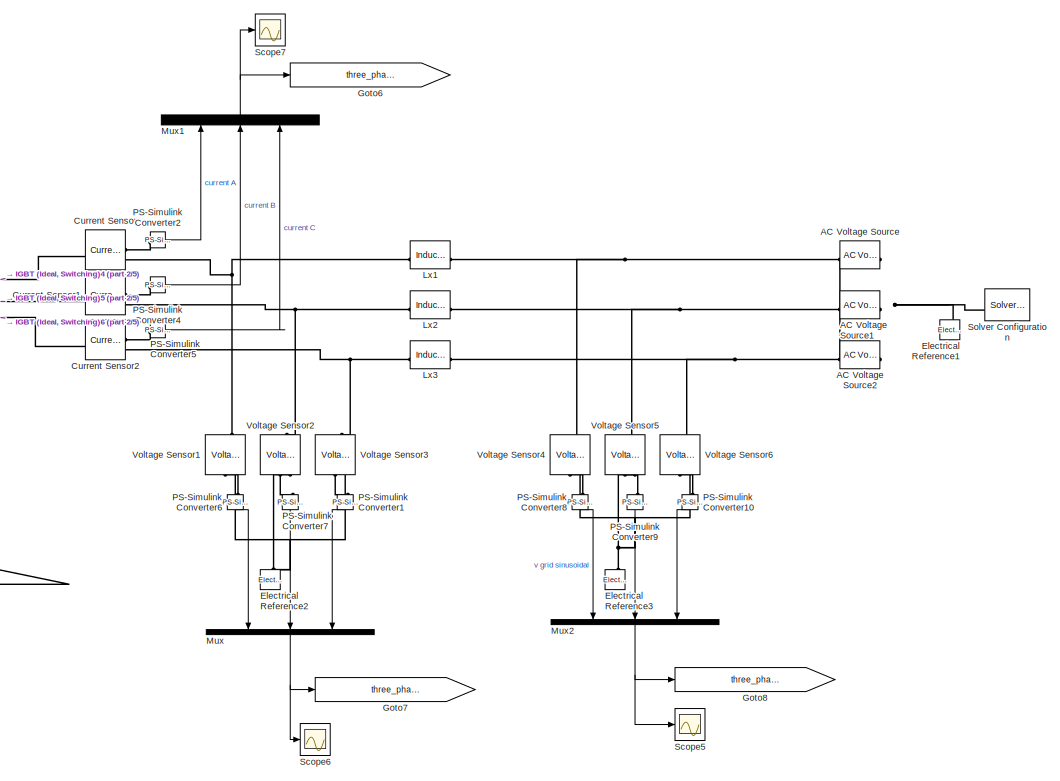
[diagram: root canvas - part 1/5, top center region]
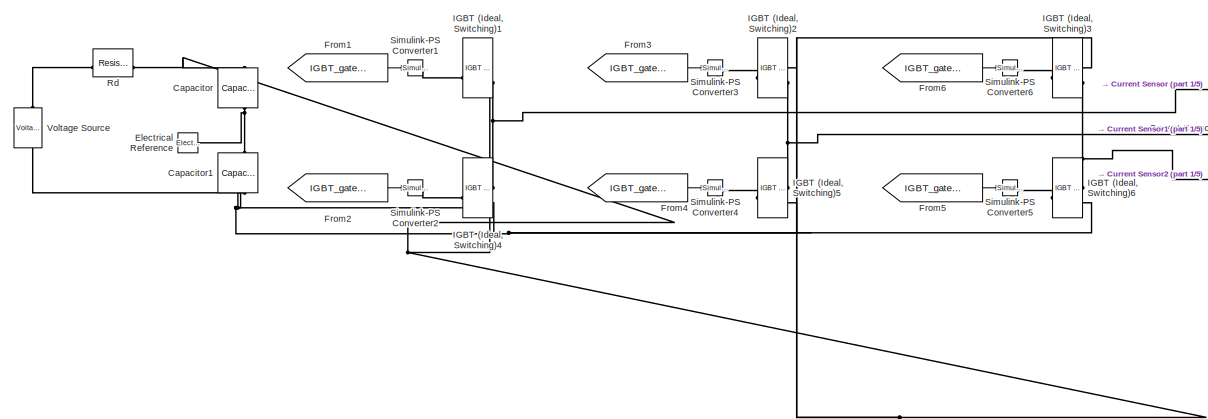
[diagram: root canvas - part 2/5, top center region]
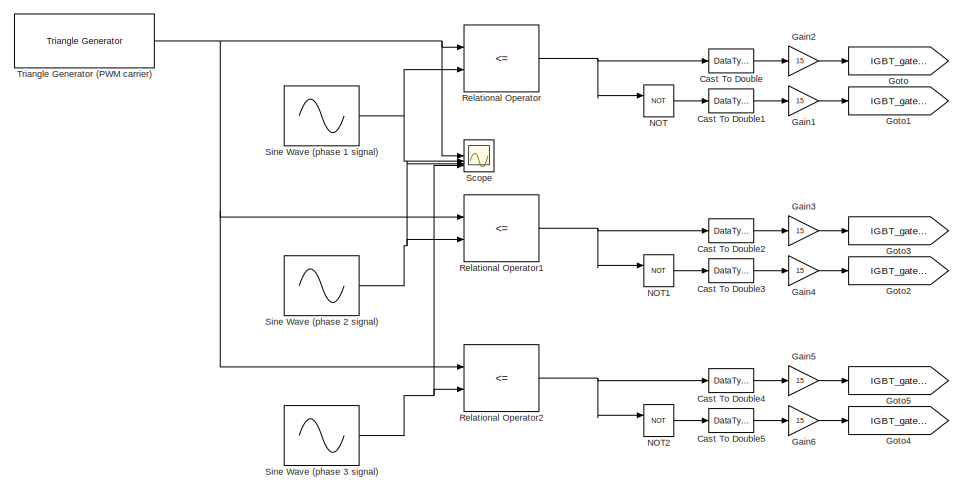
[diagram: root canvas - part 3/5, top left region]
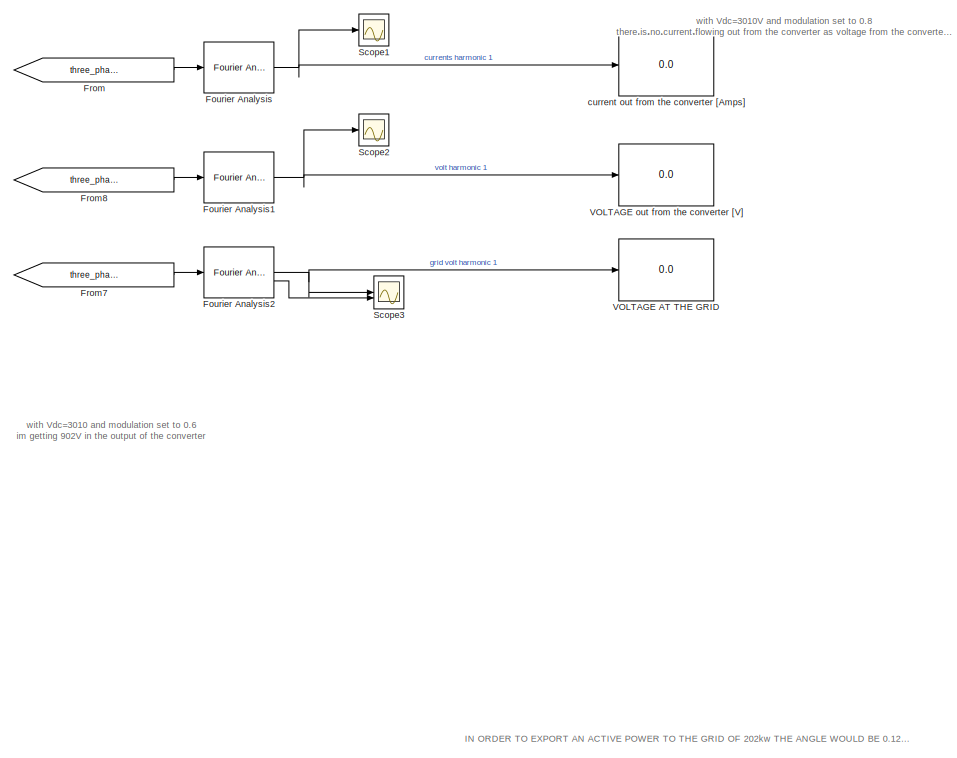
[diagram: root canvas - part 4/5, middle right region]
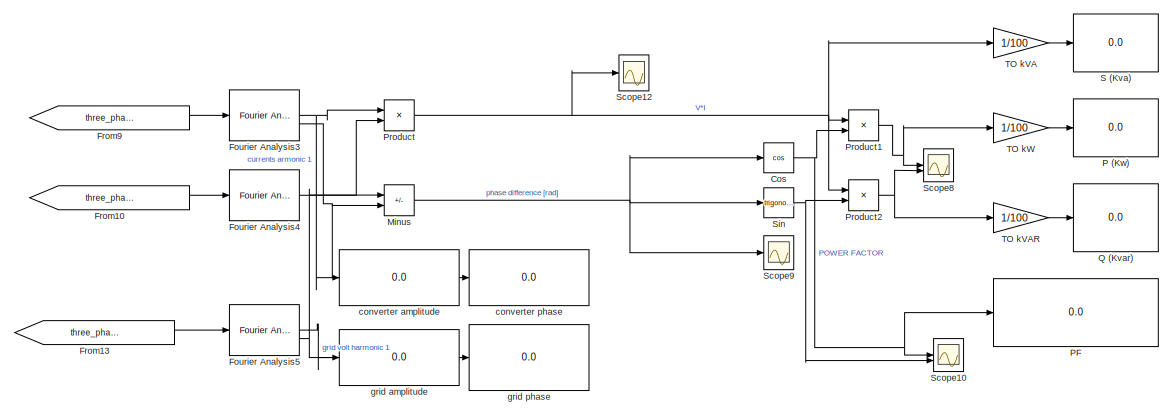
[diagram: root canvas - part 5/5, bottom right region]
MODEL slx_abad2aa7c683
KIND model
CONFIG AbsTol = auto
CONFIG EnableMultiTasking = off
CONFIG FixedStep = auto
CONFIG MaxStep = auto
CONFIG MinStep = auto
CONFIG RelTol = 1e-3
CONFIG SampleTimeConstraint = Unconstrained
CONFIG SolverName = VariableStepAuto
CONFIG StartTime = 0.0
CONFIG StopTime = sim_time
BLOCK [Reference] AC Voltage Source  REF=fl_lib/Electrical/Electrical Sources/AC Voltage Source
  NameLocation = top
  SourceBlock = fl_lib/Electrical/Electrical Sources/AC Voltage Source
  SourceType = AC Voltage Source
BLOCK [Reference] AC Voltage Source1  REF=fl_lib/Electrical/Electrical Sources/AC Voltage Source
  NameLocation = top
  SourceBlock = fl_lib/Electrical/Electrical Sources/AC Voltage Source
  SourceType = AC Voltage Source
BLOCK [Reference] AC Voltage Source2  REF=fl_lib/Electrical/Electrical Sources/AC Voltage Source
  NameLocation = top
  SourceBlock = fl_lib/Electrical/Electrical Sources/AC Voltage Source
  SourceType = AC Voltage Source
BLOCK [Reference] Capacitor  REF=fl_lib/Electrical/Electrical Elements/Capacitor
  NameLocation = left
  SourceBlock = fl_lib/Electrical/Electrical Elements/Capacitor
  SourceType = Capacitor
BLOCK [Reference] Capacitor1  REF=fl_lib/Electrical/Electrical Elements/Capacitor
  NameLocation = left
  SourceBlock = fl_lib/Electrical/Electrical Elements/Capacitor
  SourceType = Capacitor
BLOCK [DataTypeConversion] Cast To Double
  OutDataTypeStr = double
  RndMeth = Floor
  SaturateOnIntegerOverflow = off
BLOCK [DataTypeConversion] Cast To Double1
  OutDataTypeStr = double
  RndMeth = Floor
  SaturateOnIntegerOverflow = off
BLOCK [DataTypeConversion] Cast To Double2
  OutDataTypeStr = double
  RndMeth = Floor
  SaturateOnIntegerOverflow = off
BLOCK [DataTypeConversion] Cast To Double3
  OutDataTypeStr = double
  RndMeth = Floor
  SaturateOnIntegerOverflow = off
BLOCK [DataTypeConversion] Cast To Double4
  OutDataTypeStr = double
  RndMeth = Floor
  SaturateOnIntegerOverflow = off
BLOCK [DataTypeConversion] Cast To Double5
  OutDataTypeStr = double
  RndMeth = Floor
  SaturateOnIntegerOverflow = off
BLOCK [Trigonometry] Cos
  Operator = cos
BLOCK [Reference] Current Sensor  REF=fl_lib/Electrical/Electrical Sensors/Current Sensor
  SourceBlock = fl_lib/Electrical/Electrical Sensors/Current Sensor
  SourceType = Current Sensor
BLOCK [Reference] Current Sensor1  REF=fl_lib/Electrical/Electrical Sensors/Current Sensor
  SourceBlock = fl_lib/Electrical/Electrical Sensors/Current Sensor
  SourceType = Current Sensor
BLOCK [Reference] Current Sensor2  REF=fl_lib/Electrical/Electrical Sensors/Current Sensor
  SourceBlock = fl_lib/Electrical/Electrical Sensors/Current Sensor
  SourceType = Current Sensor
BLOCK [Reference] Electrical Reference  REF=fl_lib/Electrical/Electrical Elements/Electrical Reference
  NameLocation = right
  SourceBlock = fl_lib/Electrical/Electrical Elements/Electrical Reference
  SourceType = Electrical Reference
BLOCK [Reference] Electrical Reference1  REF=fl_lib/Electrical/Electrical Elements/Electrical Reference
  NameLocation = right
  SourceBlock = fl_lib/Electrical/Electrical Elements/Electrical Reference
  SourceType = Electrical Reference
BLOCK [Reference] Electrical Reference2  REF=fl_lib/Electrical/Electrical Elements/Electrical Reference
  NameLocation = right
  SourceBlock = fl_lib/Electrical/Electrical Elements/Electrical Reference
  SourceType = Electrical Reference
BLOCK [Reference] Electrical Reference3  REF=fl_lib/Electrical/Electrical Elements/Electrical Reference
  NameLocation = right
  SourceBlock = fl_lib/Electrical/Electrical Elements/Electrical Reference
  SourceType = Electrical Reference
BLOCK [Reference] Fourier Analysis  REF=eeGeneralControl/Fourier Analysis
  LibrarySourceBlock = ee_sl_lib/General Control/Fourier Analysis
  SourceBlock = eeGeneralControl/Fourier Analysis
  SourceType = Fourier Analysis
BLOCK [Reference] Fourier Analysis1  REF=eeGeneralControl/Fourier Analysis
  LibrarySourceBlock = ee_sl_lib/General Control/Fourier Analysis
  SourceBlock = eeGeneralControl/Fourier Analysis
  SourceType = Fourier Analysis
BLOCK [Reference] Fourier Analysis2  REF=eeGeneralControl/Fourier Analysis
  LibrarySourceBlock = ee_sl_lib/General Control/Fourier Analysis
  SourceBlock = eeGeneralControl/Fourier Analysis
  SourceType = Fourier Analysis
BLOCK [Reference] Fourier Analysis3  REF=eeGeneralControl/Fourier Analysis
  LibrarySourceBlock = ee_sl_lib/General Control/Fourier Analysis
  SourceBlock = eeGeneralControl/Fourier Analysis
  SourceType = Fourier Analysis
BLOCK [Reference] Fourier Analysis4  REF=eeGeneralControl/Fourier Analysis
  LibrarySourceBlock = ee_sl_lib/General Control/Fourier Analysis
  SourceBlock = eeGeneralControl/Fourier Analysis
  SourceType = Fourier Analysis
BLOCK [Reference] Fourier Analysis5  REF=eeGeneralControl/Fourier Analysis
  LibrarySourceBlock = ee_sl_lib/General Control/Fourier Analysis
  SourceBlock = eeGeneralControl/Fourier Analysis
  SourceType = Fourier Analysis
BLOCK [From] From
  GotoTag = three_phase_currents
BLOCK [From] From1
  GotoTag = IGBT_gate_1
BLOCK [From] From10
  GotoTag = three_phase_currents
BLOCK [From] From13
  GotoTag = three_phase_volts_grid
BLOCK [From] From2
  GotoTag = IGBT_gate_4
BLOCK [From] From3
  GotoTag = IGBT_gate_3
BLOCK [From] From4
  GotoTag = IGBT_gate_6
BLOCK [From] From5
  GotoTag = IGBT_gate_2
BLOCK [From] From6
  GotoTag = IGBT_gate_5
BLOCK [From] From7
  GotoTag = three_phase_volts_grid
BLOCK [From] From8
  GotoTag = three_phase_volts_converter
BLOCK [From] From9
  GotoTag = three_phase_volts_converter
BLOCK [Gain] Gain1
  Gain = 15
BLOCK [Gain] Gain2
  Gain = 15
BLOCK [Gain] Gain3
  Gain = 15
BLOCK [Gain] Gain4
  Gain = 15
BLOCK [Gain] Gain5
  Gain = 15
BLOCK [Gain] Gain6
  Gain = 15
BLOCK [Goto] Goto
  GotoTag = IGBT_gate_1
BLOCK [Goto] Goto1
  GotoTag = IGBT_gate_4
BLOCK [Goto] Goto2
  GotoTag = IGBT_gate_6
BLOCK [Goto] Goto3
  GotoTag = IGBT_gate_3
BLOCK [Goto] Goto4
  GotoTag = IGBT_gate_2
BLOCK [Goto] Goto5
  GotoTag = IGBT_gate_5
BLOCK [Goto] Goto6
  GotoTag = three_phase_currents
  NameLocation = top
BLOCK [Goto] Goto7
  GotoTag = three_phase_volts_converter
  NameLocation = top
BLOCK [Goto] Goto8
  GotoTag = three_phase_volts_grid
  NameLocation = top
BLOCK [Reference] IGBT (Ideal, Switching)1  REF=ee_lib/Semiconductors &
Converters/IGBT
(Ideal,
Switching)
  SourceBlock = ee_lib/Semiconductors &\nConverters/IGBT\n(Ideal,\nSwitching)
  SourceType = IGBT\n(Ideal,\nSwitching)
BLOCK [Reference] IGBT (Ideal, Switching)2  REF=ee_lib/Semiconductors &
Converters/IGBT
(Ideal,
Switching)
  SourceBlock = ee_lib/Semiconductors &\nConverters/IGBT\n(Ideal,\nSwitching)
  SourceType = IGBT\n(Ideal,\nSwitching)
BLOCK [Reference] IGBT (Ideal, Switching)3  REF=ee_lib/Semiconductors &
Converters/IGBT
(Ideal,
Switching)
  SourceBlock = ee_lib/Semiconductors &\nConverters/IGBT\n(Ideal,\nSwitching)
  SourceType = IGBT\n(Ideal,\nSwitching)
BLOCK [Reference] IGBT (Ideal, Switching)4  REF=ee_lib/Semiconductors &
Converters/IGBT
(Ideal,
Switching)
  SourceBlock = ee_lib/Semiconductors &\nConverters/IGBT\n(Ideal,\nSwitching)
  SourceType = IGBT\n(Ideal,\nSwitching)
BLOCK [Reference] IGBT (Ideal, Switching)5  REF=ee_lib/Semiconductors &
Converters/IGBT
(Ideal,
Switching)
  SourceBlock = ee_lib/Semiconductors &\nConverters/IGBT\n(Ideal,\nSwitching)
  SourceType = IGBT\n(Ideal,\nSwitching)
BLOCK [Reference] IGBT (Ideal, Switching)6  REF=ee_lib/Semiconductors &
Converters/IGBT
(Ideal,
Switching)
  SourceBlock = ee_lib/Semiconductors &\nConverters/IGBT\n(Ideal,\nSwitching)
  SourceType = IGBT\n(Ideal,\nSwitching)
BLOCK [Reference] Lx1  REF=fl_lib/Electrical/Electrical Elements/Inductor
  NameLocation = top
  SourceBlock = fl_lib/Electrical/Electrical Elements/Inductor
  SourceType = Inductor
BLOCK [Reference] Lx2  REF=fl_lib/Electrical/Electrical Elements/Inductor
  NameLocation = top
  SourceBlock = fl_lib/Electrical/Electrical Elements/Inductor
  SourceType = Inductor
BLOCK [Reference] Lx3  REF=fl_lib/Electrical/Electrical Elements/Inductor
  NameLocation = top
  SourceBlock = fl_lib/Electrical/Electrical Elements/Inductor
  SourceType = Inductor
BLOCK [Sum] Minus
  IconShape = rectangular
  Inputs = -+
BLOCK [Mux] Mux
  DisplayOption = bar
  Inputs = 3
  NameLocation = left
BLOCK [Mux] Mux1
  DisplayOption = bar
  Inputs = 3
  NameLocation = right
BLOCK [Mux] Mux2
  DisplayOption = bar
  Inputs = 3
  NameLocation = left
BLOCK [Logic] NOT
  AllPortsSameDT = off
  IconShape = distinctive
  Operator = NOT
  OutDataTypeStr = boolean
BLOCK [Logic] NOT1
  AllPortsSameDT = off
  IconShape = distinctive
  Operator = NOT
  OutDataTypeStr = boolean
BLOCK [Logic] NOT2
  AllPortsSameDT = off
  IconShape = distinctive
  Operator = NOT
  OutDataTypeStr = boolean
BLOCK [Display] P (Kw)
  Decimation = 1
BLOCK [Display] PF
  Decimation = 1
  Format = long
BLOCK [Reference] PS-Simulink Converter1  REF=nesl_utility/PS-Simulink
Converter
  NameLocation = left
  SourceBlock = nesl_utility/PS-Simulink\nConverter
  SourceType = PS-Simulink\nConverter
BLOCK [Reference] PS-Simulink Converter10  REF=nesl_utility/PS-Simulink
Converter
  NameLocation = left
  SourceBlock = nesl_utility/PS-Simulink\nConverter
  SourceType = PS-Simulink\nConverter
BLOCK [Reference] PS-Simulink Converter2  REF=nesl_utility/PS-Simulink
Converter
  SourceBlock = nesl_utility/PS-Simulink\nConverter
  SourceType = PS-Simulink\nConverter
BLOCK [Reference] PS-Simulink Converter4  REF=nesl_utility/PS-Simulink
Converter
  SourceBlock = nesl_utility/PS-Simulink\nConverter
  SourceType = PS-Simulink\nConverter
BLOCK [Reference] PS-Simulink Converter5  REF=nesl_utility/PS-Simulink
Converter
  SourceBlock = nesl_utility/PS-Simulink\nConverter
  SourceType = PS-Simulink\nConverter
BLOCK [Reference] PS-Simulink Converter6  REF=nesl_utility/PS-Simulink
Converter
  NameLocation = left
  SourceBlock = nesl_utility/PS-Simulink\nConverter
  SourceType = PS-Simulink\nConverter
BLOCK [Reference] PS-Simulink Converter7  REF=nesl_utility/PS-Simulink
Converter
  NameLocation = left
  SourceBlock = nesl_utility/PS-Simulink\nConverter
  SourceType = PS-Simulink\nConverter
BLOCK [Reference] PS-Simulink Converter8  REF=nesl_utility/PS-Simulink
Converter
  NameLocation = left
  SourceBlock = nesl_utility/PS-Simulink\nConverter
  SourceType = PS-Simulink\nConverter
BLOCK [Reference] PS-Simulink Converter9  REF=nesl_utility/PS-Simulink
Converter
  NameLocation = left
  SourceBlock = nesl_utility/PS-Simulink\nConverter
  SourceType = PS-Simulink\nConverter
BLOCK [Product] Product
BLOCK [Product] Product1
BLOCK [Product] Product2
BLOCK [Display] Q (Kvar)
  Decimation = 1
BLOCK [Reference] Rd  REF=fl_lib/Electrical/Electrical Elements/Resistor
  NameLocation = top
  SourceBlock = fl_lib/Electrical/Electrical Elements/Resistor
  SourceType = Resistor
BLOCK [RelationalOperator] Relational Operator
  InputSameDT = off
  Operator = <=
  OutDataTypeStr = boolean
  RndMeth = Simplest
BLOCK [RelationalOperator] Relational Operator1
  InputSameDT = off
  Operator = <=
  OutDataTypeStr = boolean
  RndMeth = Simplest
BLOCK [RelationalOperator] Relational Operator2
  InputSameDT = off
  Operator = <=
  OutDataTypeStr = boolean
  RndMeth = Simplest
BLOCK [Display] S (Kva)
  Decimation = 1
BLOCK [Scope] Scope
  Floating = off
  NumInputPorts = 4
  ScopeSpecificationString = Simulink.scopes.TimeScopeBlockCfg('CurrentConfiguration', extmgr.ConfigurationSet(extmgr.Configuration('Core','General UI',true),extmgr.Configuration('Core','Source UI',true),extmgr.Configuration('Sources','WiredSimulink',true),extmgr.Configuration('Visuals','Time Domain',true,'SerializedDisplays',{struct('MinYLimReal','-1.25','MaxYLimReal','1.25','YLabelReal','','MinYLimMag','0.00000','MaxYLimMag...<+1450ch>
BLOCK [Scope] Scope1
  Floating = off
  NumInputPorts = 1
  ScopeSpecificationString = Simulink.scopes.TimeScopeBlockCfg('CurrentConfiguration', extmgr.ConfigurationSet(extmgr.Configuration('Core','General UI',true),extmgr.Configuration('Core','Source UI',true),extmgr.Configuration('Sources','WiredSimulink',true,'DataLoggingVariableName','ScopeData1'),extmgr.Configuration('Visuals','Time Domain',true,'SerializedDisplays',{struct('MinYLimReal','-2.13617','MaxYLimReal','19.22554','YLa...<+1432ch>
BLOCK [Scope] Scope10
  Floating = off
  NumInputPorts = 2
  ScopeSpecificationString = Simulink.scopes.TimeScopeBlockCfg('CurrentConfiguration', extmgr.ConfigurationSet(extmgr.Configuration('Core','General UI',true),extmgr.Configuration('Core','Source UI',true),extmgr.Configuration('Sources','WiredSimulink',true,'DataLoggingVariableName','ScopeData3'),extmgr.Configuration('Visuals','Time Domain',true,'SerializedDisplays',{struct('MinYLimReal','0.99179','MaxYLimReal','1.00091','YLabe...<+2097ch>
BLOCK [Scope] Scope12
  Floating = off
  NumInputPorts = 1
  ScopeSpecificationString = Simulink.scopes.TimeScopeBlockCfg('CurrentConfiguration', extmgr.ConfigurationSet(extmgr.Configuration('Core','General UI',true),extmgr.Configuration('Core','Source UI',true),extmgr.Configuration('Sources','WiredSimulink',true,'DataLoggingVariableName','ScopeData1'),extmgr.Configuration('Visuals','Time Domain',true,'SerializedDisplays',{struct('MinYLimReal','-2552.64642','MaxYLimReal','22973.81782...<+1483ch>
BLOCK [Scope] Scope2
  Floating = off
  NumInputPorts = 1
  ScopeSpecificationString = Simulink.scopes.TimeScopeBlockCfg('CurrentConfiguration', extmgr.ConfigurationSet(extmgr.Configuration('Core','General UI',true),extmgr.Configuration('Core','Source UI',true),extmgr.Configuration('Sources','WiredSimulink',true,'DataLoggingVariableName','ScopeData2'),extmgr.Configuration('Visuals','Time Domain',true,'SerializedDisplays',{struct('MinYLimReal','-149.52883','MaxYLimReal','1345.75946',...<+1434ch>
BLOCK [Scope] Scope3
  Floating = off
  NumInputPorts = 2
  ScopeSpecificationString = Simulink.scopes.TimeScopeBlockCfg('CurrentConfiguration', extmgr.ConfigurationSet(extmgr.Configuration('Core','General UI',true),extmgr.Configuration('Core','Source UI',true),extmgr.Configuration('Sources','WiredSimulink',true,'DataLoggingVariableName','ScopeData3'),extmgr.Configuration('Visuals','Time Domain',true,'SerializedDisplays',{struct('MinYLimReal','-150.00000','MaxYLimReal','1350.00000',...<+2204ch>
BLOCK [Scope] Scope5
  Floating = off
  NumInputPorts = 1
  ScopeSpecificationString = Simulink.scopes.TimeScopeBlockCfg('CurrentConfiguration', extmgr.ConfigurationSet(extmgr.Configuration('Core','General UI',true),extmgr.Configuration('Core','Source UI',true),extmgr.Configuration('Sources','WiredSimulink',true,'DataLoggingVariableName','ScopeData5'),extmgr.Configuration('Visuals','Time Domain',true,'SerializedDisplays',{struct('MinYLimReal','-1500.00000','MaxYLimReal','1500.00000'...<+1478ch>
BLOCK [Scope] Scope6
  Floating = off
  NumInputPorts = 1
  ScopeSpecificationString = Simulink.scopes.TimeScopeBlockCfg('CurrentConfiguration', extmgr.ConfigurationSet(extmgr.Configuration('Core','General UI',true),extmgr.Configuration('Core','Source UI',true),extmgr.Configuration('Sources','WiredSimulink',true,'DataLoggingVariableName','ScopeData6'),extmgr.Configuration('Visuals','Time Domain',true,'SerializedDisplays',{struct('MinYLimReal','-1780.41779','MaxYLimReal','1564.79164'...<+1526ch>
BLOCK [Scope] Scope7
  Floating = off
  NumInputPorts = 1
  ScopeSpecificationString = Simulink.scopes.TimeScopeBlockCfg('CurrentConfiguration', extmgr.ConfigurationSet(extmgr.Configuration('Core','General UI',true),extmgr.Configuration('Core','Source UI',true),extmgr.Configuration('Sources','WiredSimulink',true,'DataLoggingVariableName','ScopeData7'),extmgr.Configuration('Visuals','Time Domain',true,'SerializedDisplays',{struct('MinYLimReal','-48.19122','MaxYLimReal','48.23056','YL...<+1452ch>
BLOCK [Scope] Scope8
  Floating = off
  NumInputPorts = 2
  ScopeSpecificationString = Simulink.scopes.TimeScopeBlockCfg('CurrentConfiguration', extmgr.ConfigurationSet(extmgr.Configuration('Core','General UI',true),extmgr.Configuration('Core','Source UI',true),extmgr.Configuration('Sources','WiredSimulink',true,'DataLoggingVariableName','ScopeData1'),extmgr.Configuration('Visuals','Time Domain',true,'SerializedDisplays',{struct('MinYLimReal','-2534.19319','MaxYLimReal','22807.73874...<+2145ch>
BLOCK [Scope] Scope9
  Floating = off
  NumInputPorts = 1
  ScopeSpecificationString = Simulink.scopes.TimeScopeBlockCfg('CurrentConfiguration', extmgr.ConfigurationSet(extmgr.Configuration('Core','General UI',true),extmgr.Configuration('Core','Source UI',true),extmgr.Configuration('Sources','WiredSimulink',true,'DataLoggingVariableName','ScopeData2'),extmgr.Configuration('Visuals','Time Domain',true,'SerializedDisplays',{struct('MinYLimReal','-0.01511','MaxYLimReal','0.13603','YLab...<+1491ch>
BLOCK [Reference] Simulink-PS Converter1  REF=nesl_utility/Simulink-PS
Converter
  SourceBlock = nesl_utility/Simulink-PS\nConverter
  SourceType = Simulink-PS\nConverter
BLOCK [Reference] Simulink-PS Converter2  REF=nesl_utility/Simulink-PS
Converter
  SourceBlock = nesl_utility/Simulink-PS\nConverter
  SourceType = Simulink-PS\nConverter
BLOCK [Reference] Simulink-PS Converter3  REF=nesl_utility/Simulink-PS
Converter
  SourceBlock = nesl_utility/Simulink-PS\nConverter
  SourceType = Simulink-PS\nConverter
BLOCK [Reference] Simulink-PS Converter4  REF=nesl_utility/Simulink-PS
Converter
  SourceBlock = nesl_utility/Simulink-PS\nConverter
  SourceType = Simulink-PS\nConverter
BLOCK [Reference] Simulink-PS Converter5  REF=nesl_utility/Simulink-PS
Converter
  SourceBlock = nesl_utility/Simulink-PS\nConverter
  SourceType = Simulink-PS\nConverter
BLOCK [Reference] Simulink-PS Converter6  REF=nesl_utility/Simulink-PS
Converter
  SourceBlock = nesl_utility/Simulink-PS\nConverter
  SourceType = Simulink-PS\nConverter
BLOCK [Trigonometry] Sin
BLOCK [Sin] Sine Wave (phase 1 signal)
  Amplitude = modulation
  Frequency = gridfreq_rad
  Phase = modulation_angle
  SampleTime = 0
BLOCK [Sin] Sine Wave (phase 2 signal)
  Amplitude = modulation
  Frequency = gridfreq_rad
  Phase = (120*pi/180)+modulation_angle
  SampleTime = 0
BLOCK [Sin] Sine Wave (phase 3 signal)
  Amplitude = modulation
  Frequency = gridfreq_rad
  Phase = (240*pi/180)+modulation_angle
  SampleTime = 0
BLOCK [Reference] Solver Configuration  REF=nesl_utility/Solver
Configuration
  NameLocation = top
  SourceBlock = nesl_utility/Solver\nConfiguration
  SourceType = Solver\nConfiguration
BLOCK [Gain] TO kVA
  Gain = 1/100
BLOCK [Gain] TO kVAR
  Gain = 1/100
BLOCK [Gain] TO kW
  Gain = 1/100
BLOCK [Reference] Triangle Generator (PWM carrier)  REF=spsTriangleGeneratorLib/Triangle
Generator
  LibrarySourceBlock = sps_lib/Sources/Signal Generator Sources/Triangle\nGenerator
  SourceBlock = spsTriangleGeneratorLib/Triangle\nGenerator
  SourceType = Triangle Generator
BLOCK [Display] VOLTAGE  out from the converter [V]
  Decimation = 1
BLOCK [Display] VOLTAGE AT THE GRID
  Decimation = 1
BLOCK [Reference] Voltage Sensor1  REF=fl_lib/Electrical/Electrical Sensors/Voltage Sensor
  NameLocation = left
  SourceBlock = fl_lib/Electrical/Electrical Sensors/Voltage Sensor
  SourceType = Voltage Sensor
BLOCK [Reference] Voltage Sensor2  REF=fl_lib/Electrical/Electrical Sensors/Voltage Sensor
  NameLocation = left
  SourceBlock = fl_lib/Electrical/Electrical Sensors/Voltage Sensor
  SourceType = Voltage Sensor
BLOCK [Reference] Voltage Sensor3  REF=fl_lib/Electrical/Electrical Sensors/Voltage Sensor
  NameLocation = left
  SourceBlock = fl_lib/Electrical/Electrical Sensors/Voltage Sensor
  SourceType = Voltage Sensor
BLOCK [Reference] Voltage Sensor4  REF=fl_lib/Electrical/Electrical Sensors/Voltage Sensor
  NameLocation = left
  SourceBlock = fl_lib/Electrical/Electrical Sensors/Voltage Sensor
  SourceType = Voltage Sensor
BLOCK [Reference] Voltage Sensor5  REF=fl_lib/Electrical/Electrical Sensors/Voltage Sensor
  NameLocation = left
  SourceBlock = fl_lib/Electrical/Electrical Sensors/Voltage Sensor
  SourceType = Voltage Sensor
BLOCK [Reference] Voltage Sensor6  REF=fl_lib/Electrical/Electrical Sensors/Voltage Sensor
  NameLocation = left
  SourceBlock = fl_lib/Electrical/Electrical Sensors/Voltage Sensor
  SourceType = Voltage Sensor
BLOCK [Reference] Voltage Source  REF=ee_lib/Sources/Voltage Source
  NameLocation = right
  SourceBlock = ee_lib/Sources/Voltage Source
  SourceType = Voltage Source
BLOCK [Display] converter amplitude
  Decimation = 1
BLOCK [Display] converter phase
  Decimation = 1
BLOCK [Display] current out from the converter [Amps]
  Decimation = 1
BLOCK [Display] grid amplitude
  Decimation = 1
BLOCK [Display] grid phase
  Decimation = 1
ANNOTATION (root): with Vdc=3010 and modulation set to 0.6 im getting 902V in the output of the converter
ANNOTATION (root): with Vdc=3010V and modulation set to 0.8 there is no current flowing out from the converter as voltage from the converter aproximately matches the voltage (and phase) of the grid
ANNOTATION (root): IN ORDER TO EXPORT AN ACTIVE POWER TO THE GRID OF 202kw THE ANGLE WOULD BE 0.123 RADIANS
LINE Cast To Double1:1 -> Gain1:1
LINE Cast To Double2:1 -> Gain3:1
LINE Cast To Double3:1 -> Gain4:1
LINE Cast To Double4:1 -> Gain5:1
LINE Cast To Double5:1 -> Gain6:1
LINE Cast To Double:1 -> Gain2:1
NET Cos:1 -> PF:1, Product1:2, Scope10:1
NET Fourier Analysis1:1 -> Scope2:1, VOLTAGE  out from the converter [V]:1
NET Fourier Analysis2:1 -> Scope3:1, VOLTAGE AT THE GRID:1
LINE Fourier Analysis2:2 -> Scope3:2
NET Fourier Analysis3:1 -> Product:1, converter amplitude:1
NET Fourier Analysis3:2 -> Minus:2, converter phase:1
LINE Fourier Analysis4:1 -> Product:2
LINE Fourier Analysis5:1 -> grid amplitude:1
NET Fourier Analysis5:2 -> Minus:1, grid phase:1
NET Fourier Analysis:1 -> Scope1:1, current out from the converter [Amps]:1
LINE From10:1 -> Fourier Analysis4:1
LINE From13:1 -> Fourier Analysis5:1
LINE From1:1 -> Simulink-PS Converter1:1
LINE From2:1 -> Simulink-PS Converter2:1
LINE From3:1 -> Simulink-PS Converter3:1
LINE From4:1 -> Simulink-PS Converter4:1
LINE From5:1 -> Simulink-PS Converter5:1
LINE From6:1 -> Simulink-PS Converter6:1
LINE From7:1 -> Fourier Analysis2:1
LINE From8:1 -> Fourier Analysis1:1
LINE From9:1 -> Fourier Analysis3:1
LINE From:1 -> Fourier Analysis:1
LINE Gain1:1 -> Goto1:1
LINE Gain2:1 -> Goto:1
LINE Gain3:1 -> Goto3:1
LINE Gain4:1 -> Goto2:1
LINE Gain5:1 -> Goto5:1
LINE Gain6:1 -> Goto4:1
NET Minus:1 -> Cos:1, Scope9:1, Sin:1
NET Mux1:1 -> Goto6:1, Scope7:1
NET Mux2:1 -> Goto8:1, Scope5:1
NET Mux:1 -> Goto7:1, Scope6:1
LINE NOT1:1 -> Cast To Double3:1
LINE NOT2:1 -> Cast To Double5:1
LINE NOT:1 -> Cast To Double1:1
LINE PS-Simulink Converter10:1 -> Mux2:3
LINE PS-Simulink Converter1:1 -> Mux:3
LINE PS-Simulink Converter2:1 -> Mux1:1
LINE PS-Simulink Converter4:1 -> Mux1:2
LINE PS-Simulink Converter5:1 -> Mux1:3
LINE PS-Simulink Converter6:1 -> Mux:1
LINE PS-Simulink Converter7:1 -> Mux:2
LINE PS-Simulink Converter8:1 -> Mux2:1
LINE PS-Simulink Converter9:1 -> Mux2:2
NET Product1:1 -> Scope8:1, TO kW:1
NET Product2:1 -> Scope8:2, TO kVAR:1
NET Product:1 -> Product1:1, Product2:1, Scope12:1, TO kVA:1
NET Relational Operator1:1 -> Cast To Double2:1, NOT1:1
NET Relational Operator2:1 -> Cast To Double4:1, NOT2:1
NET Relational Operator:1 -> Cast To Double:1, NOT:1
NET Sin:1 -> Product2:2, Scope10:2
NET Sine Wave (phase 1 signal):1 -> Relational Operator:2, Scope:2
NET Sine Wave (phase 2 signal):1 -> Relational Operator1:2, Scope:3
NET Sine Wave (phase 3 signal):1 -> Relational Operator2:2, Scope:4
LINE TO kVA:1 -> S (Kva):1
LINE TO kVAR:1 -> Q (Kvar):1
LINE TO kW:1 -> P (Kw):1
NET Triangle Generator (PWM carrier):1 -> Relational Operator1:1, Relational Operator2:1, Relational Operator:1, Scope:1
PNET net1: AC Voltage Source1:LConn1 -- Lx2:RConn1 -- Voltage Sensor5:LConn1
PNET net2: AC Voltage Source1:RConn1 -- AC Voltage Source2:RConn1 -- AC Voltage Source:RConn1 -- Electrical Reference1:LConn1 -- Solver Configuration:RConn1
PNET net3: AC Voltage Source2:LConn1 -- Lx3:RConn1 -- Voltage Sensor6:LConn1
PNET net4: AC Voltage Source:LConn1 -- Lx1:RConn1 -- Voltage Sensor4:LConn1
PNET net5: Capacitor1:LConn1 -- Capacitor:RConn1 -- Electrical Reference:LConn1
PNET net6: Capacitor1:RConn1 -- IGBT (Ideal, Switching)4:RConn2 -- IGBT (Ideal, Switching)5:RConn2 -- IGBT (Ideal, Switching)6:RConn2 -- Voltage Source:RConn1
PNET net7: Capacitor:LConn1 -- IGBT (Ideal, Switching)1:RConn1 -- IGBT (Ideal, Switching)2:RConn1 -- IGBT (Ideal, Switching)3:RConn1 -- Rd:LConn1
PNET net8: Current Sensor1:LConn1 -- IGBT (Ideal, Switching)2:RConn2 -- IGBT (Ideal, Switching)5:RConn1
PLINE Current Sensor1:RConn1 -- PS-Simulink Converter4:LConn1
PNET net9: Current Sensor1:RConn2 -- Lx2:LConn1 -- Voltage Sensor2:LConn1
PNET net10: Current Sensor2:LConn1 -- IGBT (Ideal, Switching)3:RConn2 -- IGBT (Ideal, Switching)6:RConn1
PLINE Current Sensor2:RConn1 -- PS-Simulink Converter5:LConn1
PNET net11: Current Sensor2:RConn2 -- Lx3:LConn1 -- Voltage Sensor3:LConn1
PNET net12: Current Sensor:LConn1 -- IGBT (Ideal, Switching)1:RConn2 -- IGBT (Ideal, Switching)4:RConn1
PLINE Current Sensor:RConn1 -- PS-Simulink Converter2:LConn1
PNET net13: Current Sensor:RConn2 -- Lx1:LConn1 -- Voltage Sensor1:LConn1
PNET net14: Electrical Reference2:LConn1 -- Voltage Sensor1:RConn2 -- Voltage Sensor2:RConn2 -- Voltage Sensor3:RConn2
PNET net15: Electrical Reference3:LConn1 -- Voltage Sensor4:RConn2 -- Voltage Sensor5:RConn2 -- Voltage Sensor6:RConn2
PLINE IGBT (Ideal, Switching)1:LConn1 -- Simulink-PS Converter1:RConn1
PLINE IGBT (Ideal, Switching)2:LConn1 -- Simulink-PS Converter3:RConn1
PLINE IGBT (Ideal, Switching)3:LConn1 -- Simulink-PS Converter6:RConn1
PLINE IGBT (Ideal, Switching)4:LConn1 -- Simulink-PS Converter2:RConn1
PLINE IGBT (Ideal, Switching)5:LConn1 -- Simulink-PS Converter4:RConn1
PLINE IGBT (Ideal, Switching)6:LConn1 -- Simulink-PS Converter5:RConn1
PLINE PS-Simulink Converter10:LConn1 -- Voltage Sensor6:RConn1
PLINE PS-Simulink Converter1:LConn1 -- Voltage Sensor3:RConn1
PLINE PS-Simulink Converter6:LConn1 -- Voltage Sensor1:RConn1
PLINE PS-Simulink Converter7:LConn1 -- Voltage Sensor2:RConn1
PLINE PS-Simulink Converter8:LConn1 -- Voltage Sensor4:RConn1
PLINE PS-Simulink Converter9:LConn1 -- Voltage Sensor5:RConn1
PLINE Rd:RConn1 -- Voltage Source:LConn1
note: NET lines group one-source signal fan-out (src -> all destinations, sorted); 1:1 wires keep LINE; PNET lines group multi-terminal physical nets as a canonical sorted terminal list (undirected conserving connections); 2-terminal nets keep the pairwise PLINE form
